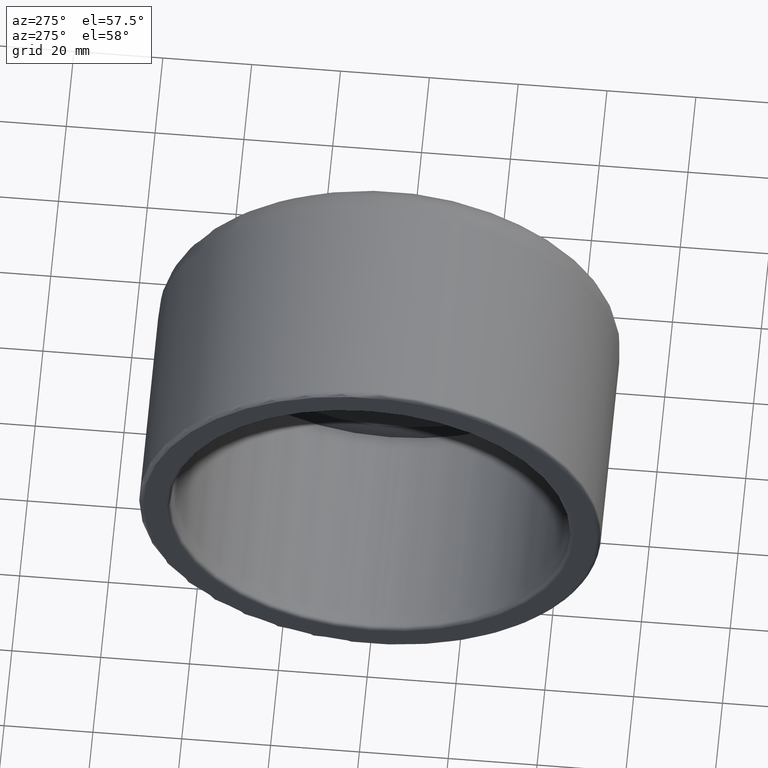
[diagram: clean part render]
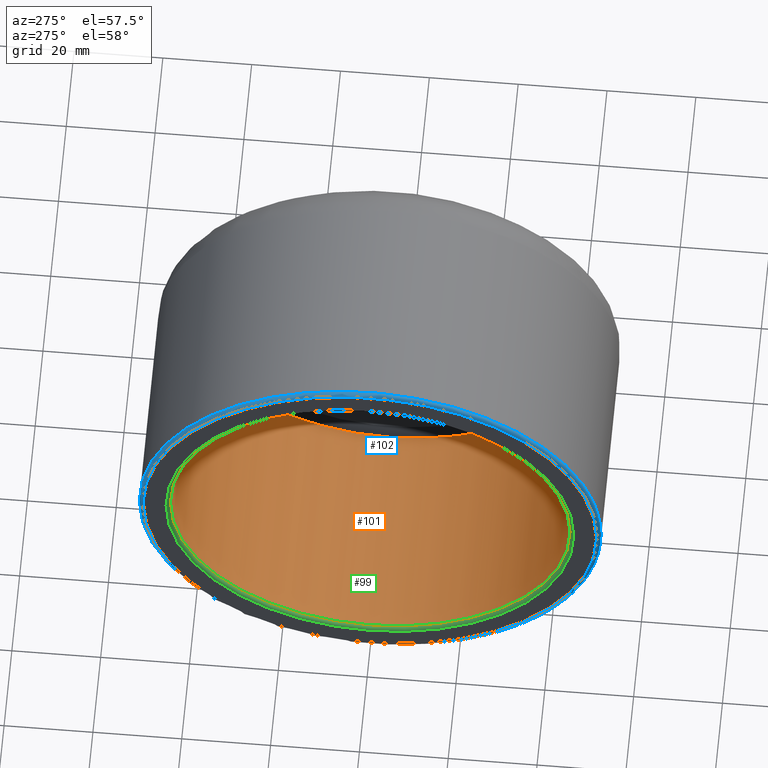
[diagram: same view with three faces highlighted in distinct colors, each labeled with its STEP entity id]
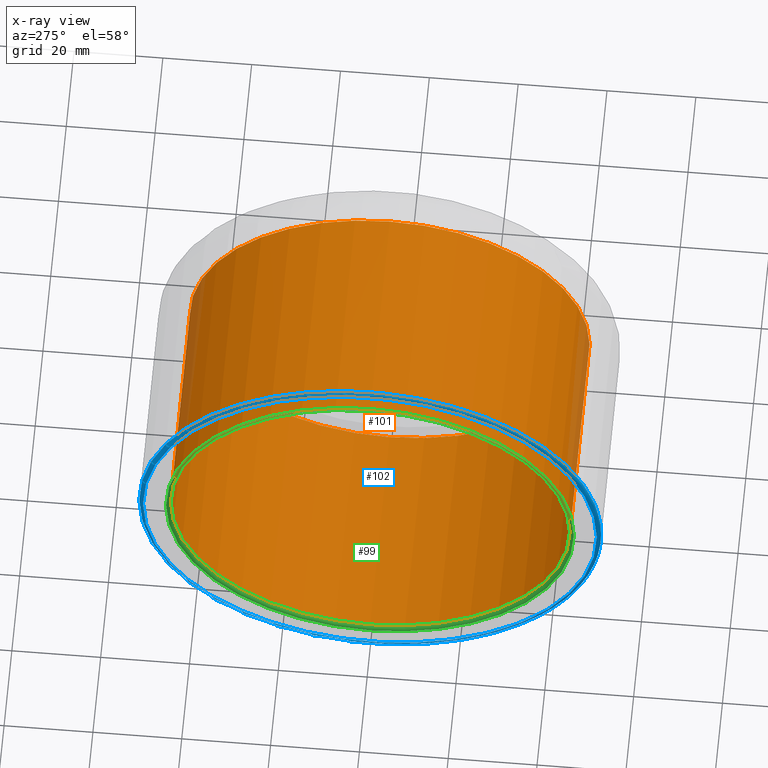
[diagram: x-ray of the same camera — body ghosted, the three highlighted faces saturated]
A machine part, auxiliary view with three faces highlighted in distinct colors.
The next image is the same camera in x-ray (body ghosted, the three faces saturated) — at least one of them is partly hidden behind the body in this view.
Their STEP definitions:

[orange] entity #101 — the highlighted cylindrical surface (bore or boss wall) has radius 45 mm, axis along (1, 0, 0).
#20=CYLINDRICAL_SURFACE('',#118,45.);
#25=FACE_BOUND('',#47,.T.);
#33=FACE_OUTER_BOUND('',#46,.T.);
#46=EDGE_LOOP('',(#86));
#47=EDGE_LOOP('',(#87));
#56=CIRCLE('',#114,45.);
#59=CIRCLE('',#119,45.);
#64=VERTEX_POINT('',#171);
#67=VERTEX_POINT('',#179);
#72=EDGE_CURVE('',#64,#64,#56,.T.);
#75=EDGE_CURVE('',#67,#67,#59,.T.);
#86=ORIENTED_EDGE('',*,*,#75,.T.);
#87=ORIENTED_EDGE('',*,*,#72,.F.);
#101=ADVANCED_FACE('',(#33,#25),#20,.F.);
#114=AXIS2_PLACEMENT_3D('',#172,#140,#141);
#118=AXIS2_PLACEMENT_3D('',#178,#148,#149);
#119=AXIS2_PLACEMENT_3D('',#180,#150,#151);
#140=DIRECTION('center_axis',(1.,1.2661124997377E-17,0.));
#141=DIRECTION('ref_axis',(1.2335811384724E-17,-1.,1.83697019872103E-16));
#148=DIRECTION('center_axis',(1.,1.2661124997377E-17,0.));
#149=DIRECTION('ref_axis',(0.,1.,0.));
#150=DIRECTION('center_axis',(1.,1.2661124997377E-17,0.));
#151=DIRECTION('ref_axis',(0.,0.,-1.));
#171=CARTESIAN_POINT('',(-72.1,45.,-2.75545529808154E-15));
#172=CARTESIAN_POINT('Origin',(-72.1,-9.12867112310882E-16,0.));
#178=CARTESIAN_POINT('Origin',(-47.5,-6.01403437375407E-16,0.));
#179=CARTESIAN_POINT('',(-22.,45.,0.));
#180=CARTESIAN_POINT('Origin',(-22.,-2.78544749942294E-16,0.));

[blue] entity #102 — the highlighted toroidal blend (fillet) surface has major radius 51.1 mm and minor (blend) radius 0.9 mm.
#26=FACE_BOUND('',#49,.T.);
#34=FACE_OUTER_BOUND('',#48,.T.);
#48=EDGE_LOOP('',(#88));
#49=EDGE_LOOP('',(#89));
#55=CIRCLE('',#111,52.);
#58=CIRCLE('',#117,51.1);
#63=VERTEX_POINT('',#167);
#66=VERTEX_POINT('',#176);
#71=EDGE_CURVE('',#63,#63,#55,.T.);
#74=EDGE_CURVE('',#66,#66,#58,.T.);
#88=ORIENTED_EDGE('',*,*,#74,.T.);
#89=ORIENTED_EDGE('',*,*,#71,.T.);
#95=TOROIDAL_SURFACE('',#120,51.1,0.9);
#102=ADVANCED_FACE('',(#34,#26),#95,.T.);
#111=AXIS2_PLACEMENT_3D('',#168,#134,#135);
#117=AXIS2_PLACEMENT_3D('',#177,#146,#147);
#120=AXIS2_PLACEMENT_3D('',#181,#152,#153);
#134=DIRECTION('center_axis',(-1.,-1.2661124997377E-17,0.));
#135=DIRECTION('ref_axis',(1.33440267382831E-17,-1.,1.83697019872103E-16));
#146=DIRECTION('center_axis',(1.,1.2661124997377E-17,0.));
#147=DIRECTION('ref_axis',(1.2661124997377E-17,-1.,1.83697019872103E-16));
#152=DIRECTION('center_axis',(1.,1.2661124997377E-17,0.));
#153=DIRECTION('ref_axis',(0.,0.,-1.));
#167=CARTESIAN_POINT('',(-72.1,52.,-1.59204083889156E-14));
#168=CARTESIAN_POINT('Origin',(-72.1,-9.12867112310882E-16,0.));
#176=CARTESIAN_POINT('',(-73.,51.1,-3.12897257182149E-15));
#177=CARTESIAN_POINT('Origin',(-73.,-9.24262124808521E-16,0.));
#181=CARTESIAN_POINT('Origin',(-72.1,-9.12867112310882E-16,0.));

[green] entity #99 — the highlighted toroidal blend (fillet) surface has major radius 45.9 mm and minor (blend) radius 0.9 mm.
#23=FACE_BOUND('',#43,.T.);
#31=FACE_OUTER_BOUND('',#42,.T.);
#42=EDGE_LOOP('',(#82));
#43=EDGE_LOOP('',(#83));
#56=CIRCLE('',#114,45.);
#57=CIRCLE('',#115,45.9);
#64=VERTEX_POINT('',#171);
#65=VERTEX_POINT('',#173);
#72=EDGE_CURVE('',#64,#64,#56,.T.);
#73=EDGE_CURVE('',#65,#65,#57,.T.);
#82=ORIENTED_EDGE('',*,*,#72,.T.);
#83=ORIENTED_EDGE('',*,*,#73,.T.);
#94=TOROIDAL_SURFACE('',#113,45.9,0.9);
#99=ADVANCED_FACE('',(#31,#23),#94,.T.);
#113=AXIS2_PLACEMENT_3D('',#170,#138,#139);
#114=AXIS2_PLACEMENT_3D('',#172,#140,#141);
#115=AXIS2_PLACEMENT_3D('',#174,#142,#143);
#138=DIRECTION('center_axis',(1.,1.2661124997377E-17,0.));
#139=DIRECTION('ref_axis',(0.,0.,-1.));
#140=DIRECTION('center_axis',(1.,1.2661124997377E-17,0.));
#141=DIRECTION('ref_axis',(1.2335811384724E-17,-1.,1.83697019872103E-16));
#142=DIRECTION('center_axis',(-1.,-1.2661124997377E-17,0.));
#143=DIRECTION('ref_axis',(1.2661124997377E-17,-1.,1.83697019872103E-16));
#170=CARTESIAN_POINT('Origin',(-72.1,-9.12867112310882E-16,0.));
#171=CARTESIAN_POINT('',(-72.1,45.,-2.75545529808154E-15));
#172=CARTESIAN_POINT('Origin',(-72.1,-9.12867112310882E-16,0.));
#173=CARTESIAN_POINT('',(-73.,45.9,-1.40528220202159E-14));
#174=CARTESIAN_POINT('Origin',(-73.,-9.24262124808521E-16,0.));